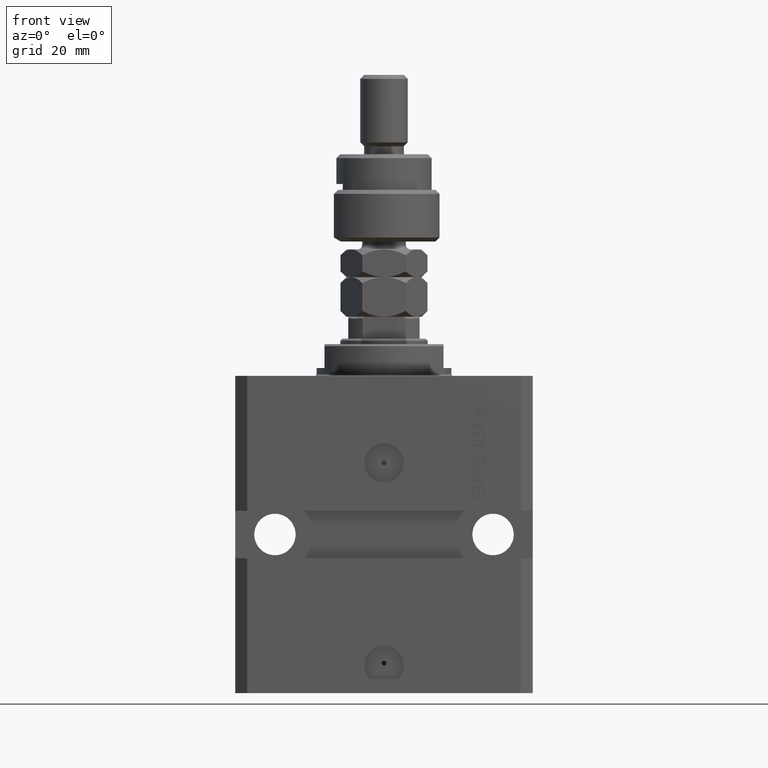
[diagram: clean part render]
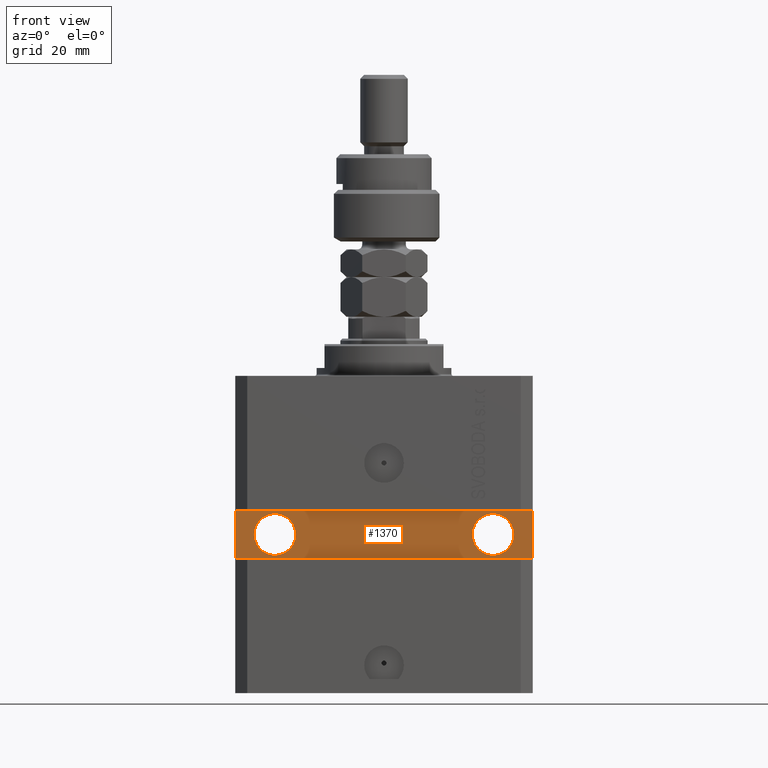
[diagram: same view with one face highlighted and labeled with its STEP entity id]
A machine part, front view. The second image highlights one B-rep face of the part: STEP entity #1370.
In plain terms, the highlighted planar face has unit normal (0, -1, 0).
Its self-contained STEP definition (entity closure, byte-faithful):
#777 = EDGE_CURVE ( 'NONE', #3621, #39947, #17621, .T. ) ;
#1370 = ADVANCED_FACE ( 'NONE', ( #24757, #43577, #16995 ), #9723, .T. ) ;
#2119 = VERTEX_POINT ( 'NONE', #9528 ) ;
#2941 = CARTESIAN_POINT ( 'NONE',  ( -37.50000000000000000, -24.50000000000000000, -34.00000000000000000 ) ) ;
#3594 = CARTESIAN_POINT ( 'NONE',  ( 37.49999999999999289, -24.49999999999999289, -46.00000000000000000 ) ) ;
#3621 = VERTEX_POINT ( 'NONE', #3594 ) ;
#4339 = CARTESIAN_POINT ( 'NONE',  ( -37.50000000000000000, -24.50000000000000000, -46.00000000000000000 ) ) ;
#4934 = CARTESIAN_POINT ( 'NONE',  ( -32.74999999999999289, -24.50000000000000000, -40.00000000000000711 ) ) ;
#8919 = VERTEX_POINT ( 'NONE', #35493 ) ;
#8963 = DIRECTION ( 'NONE',  ( 9.251858538542972814E-17, -1.000000000000000000, 0.000000000000000000 ) ) ;
#9249 = AXIS2_PLACEMENT_3D ( 'NONE', #25591, #10548, #25845 ) ;
#9528 = CARTESIAN_POINT ( 'NONE',  ( -37.50000000000000000, -24.50000000000000000, -46.00000000000000000 ) ) ;
#9723 = PLANE ( 'NONE',  #14106 ) ;
#9762 = CARTESIAN_POINT ( 'NONE',  ( 27.50000000000000711, -24.49999999999999289, -40.00000000000000000 ) ) ;
#10548 = DIRECTION ( 'NONE',  ( 1.101411730780568590E-16, -1.000000000000000000, 0.000000000000000000 ) ) ;
#13840 = VECTOR ( 'NONE', #34372, 1000.000000000000000 ) ;
#14106 = AXIS2_PLACEMENT_3D ( 'NONE', #25266, #8963, #47868 ) ;
#14443 = CARTESIAN_POINT ( 'NONE',  ( 37.49999999999999289, -24.49999999999999289, -33.99999999999998579 ) ) ;
#15646 = ORIENTED_EDGE ( 'NONE', *, *, #20026, .T. ) ;
#16817 = DIRECTION ( 'NONE',  ( 1.171720209325604191E-16, -1.000000000000000000, 0.000000000000000000 ) ) ;
#16995 = FACE_OUTER_BOUND ( 'NONE', #45126, .T. ) ;
#17307 = VERTEX_POINT ( 'NONE', #4934 ) ;
#17621 = LINE ( 'NONE', #25387, #42906 ) ;
#18380 = ORIENTED_EDGE ( 'NONE', *, *, #21037, .F. ) ;
#20026 = EDGE_CURVE ( 'NONE', #39947, #41562, #26587, .T. ) ;
#20425 = EDGE_LOOP ( 'NONE', ( #18380, #36123 ) ) ;
#21037 = EDGE_CURVE ( 'NONE', #29496, #8919, #40309, .T. ) ;
#21402 = EDGE_CURVE ( 'NONE', #41562, #2119, #49104, .T. ) ;
#22772 = ORIENTED_EDGE ( 'NONE', *, *, #777, .T. ) ;
#23651 = CIRCLE ( 'NONE', #41343, 5.249999999999994671 ) ;
#23883 = VERTEX_POINT ( 'NONE', #25957 ) ;
#24757 = FACE_BOUND ( 'NONE', #20425, .T. ) ;
#25206 = ORIENTED_EDGE ( 'NONE', *, *, #36456, .F. ) ;
#25266 = CARTESIAN_POINT ( 'NONE',  ( 2.191435984341280931E-15, -24.49999999999999645, 0.000000000000000000 ) ) ;
#25387 = CARTESIAN_POINT ( 'NONE',  ( 37.49999999999999289, -24.49999999999999289, -46.00000000000000000 ) ) ;
#25459 = EDGE_CURVE ( 'NONE', #2119, #3621, #38706, .T. ) ;
#25591 = CARTESIAN_POINT ( 'NONE',  ( -27.49999999999999289, -24.50000000000000000, -40.00000000000000711 ) ) ;
#25845 = DIRECTION ( 'NONE',  ( 1.000000000000000000, 0.000000000000000000, 0.000000000000000000 ) ) ;
#25957 = CARTESIAN_POINT ( 'NONE',  ( -22.24999999999999645, -24.50000000000000000, -40.00000000000000711 ) ) ;
#26587 = LINE ( 'NONE', #45425, #13840 ) ;
#27069 = ORIENTED_EDGE ( 'NONE', *, *, #45819, .F. ) ;
#29103 = AXIS2_PLACEMENT_3D ( 'NONE', #9762, #40381, #32346 ) ;
#29137 = VECTOR ( 'NONE', #30262, 1000.000000000000000 ) ;
#29496 = VERTEX_POINT ( 'NONE', #32316 ) ;
#30224 = ORIENTED_EDGE ( 'NONE', *, *, #21402, .T. ) ;
#30262 = DIRECTION ( 'NONE',  ( 0.000000000000000000, 0.000000000000000000, -1.000000000000000000 ) ) ;
#32128 = DIRECTION ( 'NONE',  ( 1.000000000000000000, 0.000000000000000000, 0.000000000000000000 ) ) ;
#32316 = CARTESIAN_POINT ( 'NONE',  ( 32.75000000000000000, -24.49999999999999289, -40.00000000000000000 ) ) ;
#32346 = DIRECTION ( 'NONE',  ( 1.000000000000000000, 0.000000000000000000, 0.000000000000000000 ) ) ;
#33333 = CIRCLE ( 'NONE', #9249, 5.249999999999997335 ) ;
#34372 = DIRECTION ( 'NONE',  ( -1.000000000000000000, -9.251858538542972814E-17, -1.850371707708594563E-16 ) ) ;
#35109 = CARTESIAN_POINT ( 'NONE',  ( -37.50000000000000000, -24.50000000000000000, -34.00000000000000000 ) ) ;
#35493 = CARTESIAN_POINT ( 'NONE',  ( 22.25000000000001421, -24.49999999999999289, -40.00000000000000000 ) ) ;
#35879 = CARTESIAN_POINT ( 'NONE',  ( 27.50000000000000711, -24.49999999999999289, -40.00000000000000000 ) ) ;
#36123 = ORIENTED_EDGE ( 'NONE', *, *, #45684, .F. ) ;
#36436 = DIRECTION ( 'NONE',  ( 0.000000000000000000, 0.000000000000000000, 1.000000000000000000 ) ) ;
#36456 = EDGE_CURVE ( 'NONE', #23883, #17307, #42681, .T. ) ;
#37526 = DIRECTION ( 'NONE',  ( 1.000000000000000000, 0.000000000000000000, 0.000000000000000000 ) ) ;
#37895 = AXIS2_PLACEMENT_3D ( 'NONE', #38258, #41532, #37526 ) ;
#38258 = CARTESIAN_POINT ( 'NONE',  ( -27.49999999999999289, -24.50000000000000000, -40.00000000000000711 ) ) ;
#38706 = LINE ( 'NONE', #4339, #42411 ) ;
#39947 = VERTEX_POINT ( 'NONE', #14443 ) ;
#40193 = DIRECTION ( 'NONE',  ( 1.000000000000000000, 9.251858538542972814E-17, 0.000000000000000000 ) ) ;
#40309 = CIRCLE ( 'NONE', #29103, 5.249999999999994671 ) ;
#40381 = DIRECTION ( 'NONE',  ( 1.171720209325604191E-16, -1.000000000000000000, 0.000000000000000000 ) ) ;
#41343 = AXIS2_PLACEMENT_3D ( 'NONE', #35879, #16817, #32128 ) ;
#41532 = DIRECTION ( 'NONE',  ( 1.101411730780568590E-16, -1.000000000000000000, 0.000000000000000000 ) ) ;
#41562 = VERTEX_POINT ( 'NONE', #35109 ) ;
#42410 = EDGE_LOOP ( 'NONE', ( #25206, #27069 ) ) ;
#42411 = VECTOR ( 'NONE', #40193, 1000.000000000000000 ) ;
#42681 = CIRCLE ( 'NONE', #37895, 5.249999999999997335 ) ;
#42906 = VECTOR ( 'NONE', #36436, 1000.000000000000000 ) ;
#43577 = FACE_BOUND ( 'NONE', #42410, .T. ) ;
#43908 = ORIENTED_EDGE ( 'NONE', *, *, #25459, .T. ) ;
#45126 = EDGE_LOOP ( 'NONE', ( #43908, #22772, #15646, #30224 ) ) ;
#45425 = CARTESIAN_POINT ( 'NONE',  ( 37.49999999999999289, -24.49999999999999289, -33.99999999999998579 ) ) ;
#45684 = EDGE_CURVE ( 'NONE', #8919, #29496, #23651, .T. ) ;
#45819 = EDGE_CURVE ( 'NONE', #17307, #23883, #33333, .T. ) ;
#47868 = DIRECTION ( 'NONE',  ( 1.000000000000000000, 9.251858538542972814E-17, 0.000000000000000000 ) ) ;
#49104 = LINE ( 'NONE', #2941, #29137 ) ;